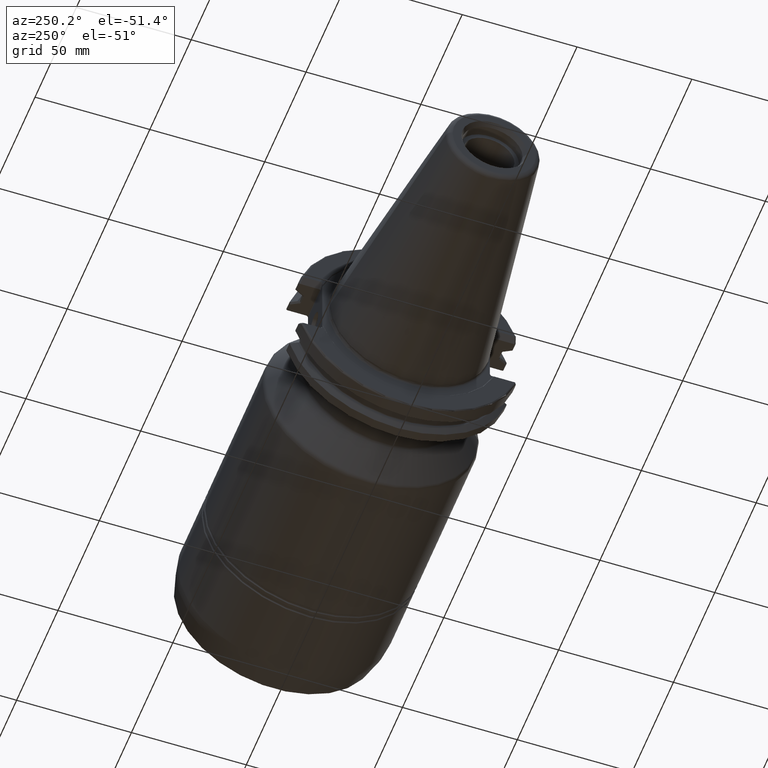
[diagram: clean part render]
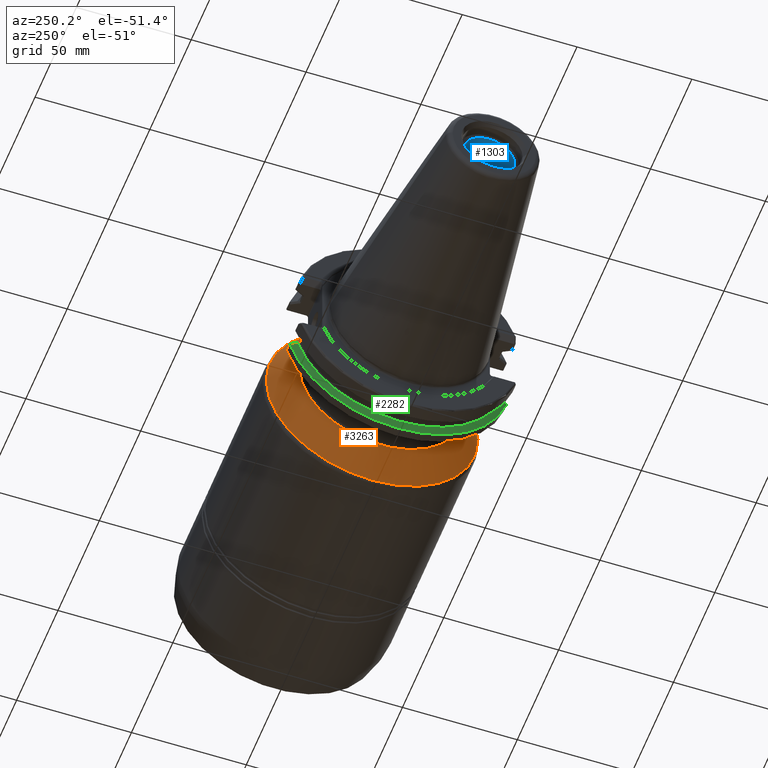
[diagram: same view with three faces highlighted in distinct colors, each labeled with its STEP entity id]
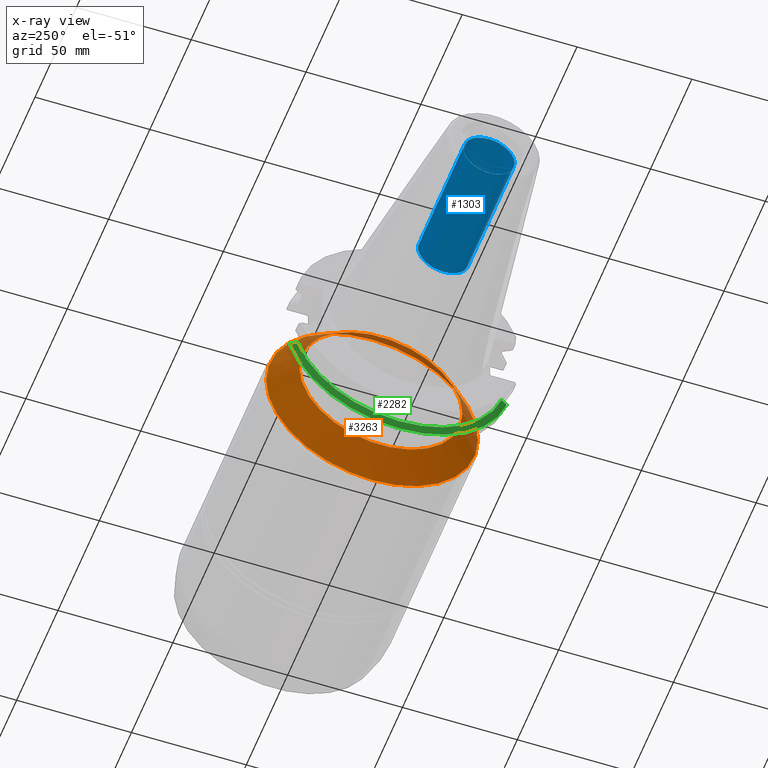
[diagram: x-ray of the same camera — body ghosted, the three highlighted faces saturated]
A machine part, auxiliary view with three faces highlighted in distinct colors.
The next image is the same camera in x-ray (body ghosted, the three faces saturated) — at least one of them is partly hidden behind the body in this view.
Their STEP definitions:

[orange] entity #3263 — the highlighted conical surface has half-angle 45 deg.
#89 = AXIS2_PLACEMENT_3D ( 'NONE', #3570, #3280, #1770 ) ;
#187 = VERTEX_POINT ( 'NONE', #3243 ) ;
#255 = ORIENTED_EDGE ( 'NONE', *, *, #3103, .T. ) ;
#331 = FACE_BOUND ( 'NONE', #1337, .T. ) ;
#549 = DIRECTION ( 'NONE',  ( 0.0000000000000000000, 0.0000000000000000000, 1.000000000000000000 ) ) ;
#638 = DIRECTION ( 'NONE',  ( 0.0000000000000000000, 0.0000000000000000000, -1.000000000000000000 ) ) ;
#839 = AXIS2_PLACEMENT_3D ( 'NONE', #3680, #3707, #638 ) ;
#1034 = EDGE_LOOP ( 'NONE', ( #3130 ) ) ;
#1072 = CARTESIAN_POINT ( 'NONE',  ( 147.8463203435648800, 0.0000000000000000000, 46.12132034356504600 ) ) ;
#1145 = CARTESIAN_POINT ( 'NONE',  ( 147.8463203435648800, 0.0000000000000000000, 0.0000000000000000000 ) ) ;
#1201 = DIRECTION ( 'NONE',  ( -1.000000000000000000, -0.0000000000000000000, -0.0000000000000000000 ) ) ;
#1311 = FACE_OUTER_BOUND ( 'NONE', #1034, .T. ) ;
#1337 = EDGE_LOOP ( 'NONE', ( #255 ) ) ;
#1465 = AXIS2_PLACEMENT_3D ( 'NONE', #1145, #1201, #549 ) ;
#1618 = EDGE_CURVE ( 'NONE', #3677, #3677, #3344, .T. ) ;
#1770 = DIRECTION ( 'NONE',  ( 0.0000000000000000000, -1.000000000000000000, 0.0000000000000000000 ) ) ;
#2068 = CONICAL_SURFACE ( 'NONE', #839, 35.51078643763564500, 0.7853981633974423900 ) ;
#3103 = EDGE_CURVE ( 'NONE', #187, #187, #3160, .T. ) ;
#3130 = ORIENTED_EDGE ( 'NONE', *, *, #1618, .T. ) ;
#3160 = CIRCLE ( 'NONE', #89, 35.51078643762689800 ) ;
#3243 = CARTESIAN_POINT ( 'NONE',  ( 137.2357864376267300, -35.51078643762689800, 0.0000000000000000000 ) ) ;
#3263 = ADVANCED_FACE ( 'NONE', ( #331, #1311 ), #2068, .T. ) ;
#3280 = DIRECTION ( 'NONE',  ( 1.000000000000000000, 2.836754783727041000E-020, 0.0000000000000000000 ) ) ;
#3344 = CIRCLE ( 'NONE', #1465, 46.12132034356504600 ) ;
#3570 = CARTESIAN_POINT ( 'NONE',  ( 137.2357864376267300, 0.0000000000000000000, 0.0000000000000000000 ) ) ;
#3677 = VERTEX_POINT ( 'NONE', #1072 ) ;
#3680 = CARTESIAN_POINT ( 'NONE',  ( 137.2357864376354800, 0.0000000000000000000, 0.0000000000000000000 ) ) ;
#3707 = DIRECTION ( 'NONE',  ( 1.000000000000000000, 0.0000000000000000000, 0.0000000000000000000 ) ) ;

[blue] entity #1303 — the highlighted cylindrical surface (bore or boss wall) has radius 11.0998 mm, axis along (-1, -0, -0).
#326 = DIRECTION ( 'NONE',  ( -1.000000000000000000, -0.0000000000000000000, -0.0000000000000000000 ) ) ;
#505 = EDGE_CURVE ( 'NONE', #2208, #2208, #1226, .T. ) ;
#521 = AXIS2_PLACEMENT_3D ( 'NONE', #870, #2148, #1248 ) ;
#870 = CARTESIAN_POINT ( 'NONE',  ( 6.349999999999999600, 3.611118645726067200E-032, 0.0000000000000000000 ) ) ;
#952 = DIRECTION ( 'NONE',  ( 0.0000000000000000000, 0.0000000000000000000, 1.000000000000000000 ) ) ;
#1226 = CIRCLE ( 'NONE', #2363, 11.09979999999998600 ) ;
#1248 = DIRECTION ( 'NONE',  ( 0.0000000000000000000, -1.000000000000000000, 0.0000000000000000000 ) ) ;
#1255 = EDGE_CURVE ( 'NONE', #3525, #3525, #3296, .T. ) ;
#1303 = ADVANCED_FACE ( 'NONE', ( #3490, #3590 ), #2315, .F. ) ;
#1536 = AXIS2_PLACEMENT_3D ( 'NONE', #2209, #326, #952 ) ;
#1563 = EDGE_LOOP ( 'NONE', ( #3433 ) ) ;
#2138 = DIRECTION ( 'NONE',  ( 0.0000000000000000000, 0.0000000000000000000, 1.000000000000000000 ) ) ;
#2148 = DIRECTION ( 'NONE',  ( -1.000000000000000000, 1.584553631254001500E-017, 0.0000000000000000000 ) ) ;
#2208 = VERTEX_POINT ( 'NONE', #3218 ) ;
#2209 = CARTESIAN_POINT ( 'NONE',  ( 0.0000000000000000000, 3.611118645726067200E-032, 0.0000000000000000000 ) ) ;
#2244 = ORIENTED_EDGE ( 'NONE', *, *, #505, .F. ) ;
#2315 = CYLINDRICAL_SURFACE ( 'NONE', #1536, 11.09979999999998900 ) ;
#2363 = AXIS2_PLACEMENT_3D ( 'NONE', #3327, #3628, #2138 ) ;
#3218 = CARTESIAN_POINT ( 'NONE',  ( 61.50000000000000000, 3.611118645726067200E-032, 11.09979999999998600 ) ) ;
#3296 = CIRCLE ( 'NONE', #521, 11.09979999999998900 ) ;
#3327 = CARTESIAN_POINT ( 'NONE',  ( 61.50000000000000000, 3.611118645726067200E-032, 0.0000000000000000000 ) ) ;
#3433 = ORIENTED_EDGE ( 'NONE', *, *, #1255, .T. ) ;
#3460 = EDGE_LOOP ( 'NONE', ( #2244 ) ) ;
#3490 = FACE_OUTER_BOUND ( 'NONE', #1563, .T. ) ;
#3525 = VERTEX_POINT ( 'NONE', #3551 ) ;
#3551 = CARTESIAN_POINT ( 'NONE',  ( 6.349999999999999600, -11.09979999999998900, 0.0000000000000000000 ) ) ;
#3590 = FACE_OUTER_BOUND ( 'NONE', #3460, .T. ) ;
#3628 = DIRECTION ( 'NONE',  ( -1.000000000000000000, -0.0000000000000000000, -0.0000000000000000000 ) ) ;

[green] entity #2282 — the highlighted conical surface has half-angle 60 deg.
#5 = DIRECTION ( 'NONE',  ( 0.0000000000000000000, 1.000000000000000000, 0.0000000000000000000 ) ) ;
#154 = CIRCLE ( 'NONE', #1487, 49.21249999999999900 ) ;
#161 = ORIENTED_EDGE ( 'NONE', *, *, #791, .T. ) ;
#203 = EDGE_LOOP ( 'NONE', ( #607, #1378, #1431, #161 ) ) ;
#228 = B_SPLINE_CURVE_WITH_KNOTS ( 'NONE', 3,
 ( #1781, #2059, #1452, #1488 ),
 .UNSPECIFIED., .F., .F.,
 ( 4, 4 ),
 ( 0.0000000000000000000, 1.000000000000000000 ),
 .UNSPECIFIED. ) ;
#262 = DIRECTION ( 'NONE',  ( 0.0000000000000000000, 1.000000000000000000, 0.0000000000000000000 ) ) ;
#342 = CIRCLE ( 'NONE', #437, 46.43919780457007800 ) ;
#395 = CARTESIAN_POINT ( 'NONE',  ( 116.3021667690756400, 7.213040712110486700E-018, 0.0000000000000000000 ) ) ;
#437 = AXIS2_PLACEMENT_3D ( 'NONE', #932, #1209, #262 ) ;
#478 = EDGE_CURVE ( 'NONE', #2440, #3283, #342, .T. ) ;
#607 = ORIENTED_EDGE ( 'NONE', *, *, #784, .F. ) ;
#745 = CARTESIAN_POINT ( 'NONE',  ( 116.3021667690756400, -47.28288044156499800, -13.64548912273465000 ) ) ;
#749 = CARTESIAN_POINT ( 'NONE',  ( 114.7009999999999900, -44.38729986697951100, -13.65161907067534700 ) ) ;
#784 = EDGE_CURVE ( 'NONE', #3050, #993, #154, .T. ) ;
#791 = EDGE_CURVE ( 'NONE', #3283, #993, #2878, .T. ) ;
#834 = CARTESIAN_POINT ( 'NONE',  ( 114.7009999999999900, 44.41431967337494800, -13.56345459988883600 ) ) ;
#932 = CARTESIAN_POINT ( 'NONE',  ( 114.7009999999999900, 7.122198362276084600E-018, 0.0000000000000000000 ) ) ;
#974 = CARTESIAN_POINT ( 'NONE',  ( 114.7009999999999900, 44.41431967337494800, -13.56345459988883600 ) ) ;
#993 = VERTEX_POINT ( 'NONE', #1557 ) ;
#1012 = FACE_OUTER_BOUND ( 'NONE', #203, .T. ) ;
#1118 = CONICAL_SURFACE ( 'NONE', #2982, 49.21249999999999900, 1.047197551196599600 ) ;
#1209 = DIRECTION ( 'NONE',  ( 1.000000000000000000, 5.673509567454082000E-020, -0.0000000000000000000 ) ) ;
#1263 = DIRECTION ( 'NONE',  ( 0.0000000000000000000, 1.000000000000000000, 0.0000000000000000000 ) ) ;
#1378 = ORIENTED_EDGE ( 'NONE', *, *, #3695, .T. ) ;
#1397 = CARTESIAN_POINT ( 'NONE',  ( 115.2182067597737100, 45.35160544986580800, -13.56143752411840400 ) ) ;
#1431 = ORIENTED_EDGE ( 'NONE', *, *, #478, .T. ) ;
#1452 = CARTESIAN_POINT ( 'NONE',  ( 115.2182091700982800, -45.32539521652938000, -13.64882964533512000 ) ) ;
#1487 = AXIS2_PLACEMENT_3D ( 'NONE', #395, #2449, #1263 ) ;
#1488 = CARTESIAN_POINT ( 'NONE',  ( 114.7009999999999900, -44.38729986697951100, -13.65161907067534700 ) ) ;
#1557 = CARTESIAN_POINT ( 'NONE',  ( 116.3021667690756400, 47.30844201403887400, -13.55660246722320700 ) ) ;
#1781 = CARTESIAN_POINT ( 'NONE',  ( 116.3021667690756400, -47.28288044156499800, -13.64548912273465000 ) ) ;
#1877 = DIRECTION ( 'NONE',  ( 1.000000000000000000, 5.673509567454082000E-020, -0.0000000000000000000 ) ) ;
#1935 = CARTESIAN_POINT ( 'NONE',  ( 116.3021667690756400, 47.30844201403887400, -13.55660246722320700 ) ) ;
#2059 = CARTESIAN_POINT ( 'NONE',  ( 115.7519314253158500, -46.29047583414247000, -13.64713694495831800 ) ) ;
#2282 = ADVANCED_FACE ( 'NONE', ( #1012 ), #1118, .T. ) ;
#2440 = VERTEX_POINT ( 'NONE', #749 ) ;
#2449 = DIRECTION ( 'NONE',  ( 1.000000000000000000, 5.673509567454082000E-020, -0.0000000000000000000 ) ) ;
#2878 = B_SPLINE_CURVE_WITH_KNOTS ( 'NONE', 3,
 ( #834, #1397, #3135, #1935 ),
 .UNSPECIFIED., .F., .F.,
 ( 4, 4 ),
 ( 0.0000000000000000000, 1.000000000000000000 ),
 .UNSPECIFIED. ) ;
#2982 = AXIS2_PLACEMENT_3D ( 'NONE', #3645, #1877, #5 ) ;
#3050 = VERTEX_POINT ( 'NONE', #745 ) ;
#3135 = CARTESIAN_POINT ( 'NONE',  ( 115.7519290159632000, 46.31621652466332500, -13.55947186996940200 ) ) ;
#3283 = VERTEX_POINT ( 'NONE', #974 ) ;
#3645 = CARTESIAN_POINT ( 'NONE',  ( 116.3021667690756400, 7.213040712110486700E-018, 0.0000000000000000000 ) ) ;
#3695 = EDGE_CURVE ( 'NONE', #3050, #2440, #228, .T. ) ;